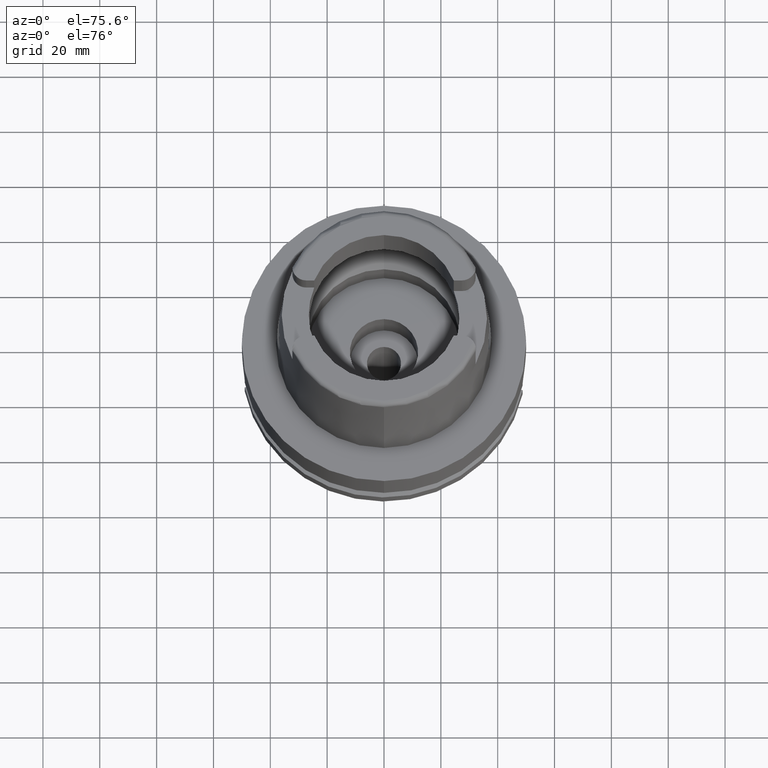
[diagram: clean part render]
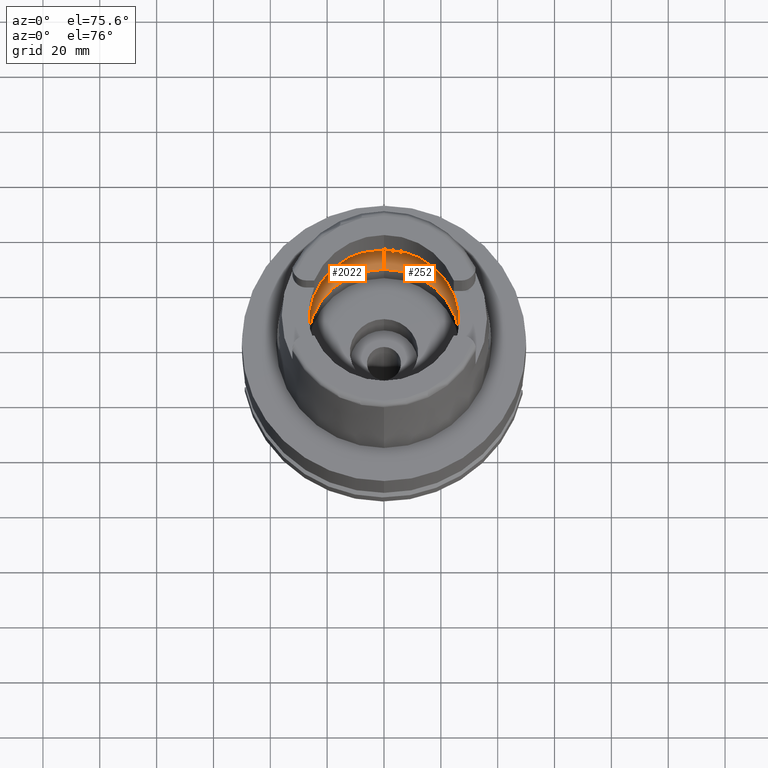
[diagram: same view with one multi-face feature highlighted, each face labeled with its STEP entity id]
A machine part, auxiliary view. The highlighted faces form ONE feature: a constant-radius fillet chain: 2 tangent blend faces with common blend radius 12 mm. The faces share edges in the B-rep.
Their STEP definitions:
[1] entity #252 (Torus):
#157 = ORIENTED_EDGE ( 'NONE', *, *, #2971, .F. ) ;
#214 = VERTEX_POINT ( 'NONE', #5215 ) ;
#252 = ADVANCED_FACE ( 'NONE', ( #5005 ), #380, .F. ) ;
#380 = TOROIDAL_SURFACE ( 'NONE', #1836, 19.50000000000000000, 12.00000000000000000 ) ;
#526 = VERTEX_POINT ( 'NONE', #2624 ) ;
#592 = B_SPLINE_CURVE_WITH_KNOTS ( 'NONE', 3,
 ( #5105, #4402, #3446, #4346, #2585, #1752 ),
 .UNSPECIFIED., .F., .F.,
 ( 4, 1, 1, 4 ),
 ( 0.0000000000000000000, 0.3333333333333000081, 0.6666666666667000474, 1.000000000000000000 ),
 .UNSPECIFIED. ) ;
#808 = VERTEX_POINT ( 'NONE', #4182 ) ;
#1417 = CARTESIAN_POINT ( 'NONE',  ( 0.0000000000000000000, 19.50000000000000000, 9.496624327025999790 ) ) ;
#1445 = ORIENTED_EDGE ( 'NONE', *, *, #2816, .F. ) ;
#1496 = CARTESIAN_POINT ( 'NONE',  ( 31.45843215351000310, 1.626125992769999806, 9.205189397203000112 ) ) ;
#1587 = CARTESIAN_POINT ( 'NONE',  ( 31.48971910754000447, 0.2740808193429000172, 9.000000000000000000 ) ) ;
#1752 = CARTESIAN_POINT ( 'NONE',  ( 31.40918884336000616, -2.390158196043999705, 9.496624327025999790 ) ) ;
#1775 = DIRECTION ( 'NONE',  ( 0.0000000000000000000, 0.0000000000000000000, -1.000000000000000000 ) ) ;
#1805 = DIRECTION ( 'NONE',  ( 0.9971171061384295209, -0.07587803796965221503, 0.0000000000000000000 ) ) ;
#1836 = AXIS2_PLACEMENT_3D ( 'NONE', #5062, #5571, #2999 ) ;
#1876 = DIRECTION ( 'NONE',  ( -1.000000000000000000, 0.0000000000000000000, 0.0000000000000000000 ) ) ;
#1896 = DIRECTION ( 'NONE',  ( 0.0000000000000000000, 0.6166666666667049990, -0.7872243785746061429 ) ) ;
#2004 = VERTEX_POINT ( 'NONE', #5383 ) ;
#2041 = CARTESIAN_POINT ( 'NONE',  ( 0.0000000000000000000, -26.89999999999999858, 0.04993178413028000195 ) ) ;
#2161 = CARTESIAN_POINT ( 'NONE',  ( 0.0000000000000000000, 31.50000000000000000, 9.496624327025999790 ) ) ;
#2236 = AXIS2_PLACEMENT_3D ( 'NONE', #2627, #1775, #1805 ) ;
#2362 = CARTESIAN_POINT ( 'NONE',  ( 31.40918884336000616, 2.390158196043999705, 9.496624327025999790 ) ) ;
#2391 = CARTESIAN_POINT ( 'NONE',  ( 31.48971910754000447, 0.0000000000000000000, 9.000000000000000000 ) ) ;
#2402 = AXIS2_PLACEMENT_3D ( 'NONE', #3625, #3194, #2757 ) ;
#2480 = ORIENTED_EDGE ( 'NONE', *, *, #2752, .T. ) ;
#2496 = AXIS2_PLACEMENT_3D ( 'NONE', #1417, #5318, #1896 ) ;
#2536 = EDGE_CURVE ( 'NONE', #2004, #5095, #4681, .T. ) ;
#2560 = VERTEX_POINT ( 'NONE', #2161 ) ;
#2585 = CARTESIAN_POINT ( 'NONE',  ( 31.42817542026000410, -2.140654635826999996, 9.388263020288000860 ) ) ;
#2624 = CARTESIAN_POINT ( 'NONE',  ( 0.0000000000000000000, 26.89999999999999858, 0.04993178413029000090 ) ) ;
#2627 = CARTESIAN_POINT ( 'NONE',  ( 0.0000000000000000000, 0.0000000000000000000, 9.496624327025999790 ) ) ;
#2752 = EDGE_CURVE ( 'NONE', #3300, #5095, #2850, .T. ) ;
#2757 = DIRECTION ( 'NONE',  ( 0.0000000000000000000, 1.000000000000000000, 0.0000000000000000000 ) ) ;
#2816 = EDGE_CURVE ( 'NONE', #526, #2560, #3510, .T. ) ;
#2850 = CIRCLE ( 'NONE', #4038, 11.99999999999999822 ) ;
#2891 = EDGE_CURVE ( 'NONE', #2560, #214, #3047, .T. ) ;
#2971 = EDGE_CURVE ( 'NONE', #214, #808, #4480, .T. ) ;
#2998 = EDGE_CURVE ( 'NONE', #3300, #526, #3514, .T. ) ;
#2999 = DIRECTION ( 'NONE',  ( 0.0000000000000000000, 1.000000000000000000, 0.0000000000000000000 ) ) ;
#3047 = CIRCLE ( 'NONE', #2402, 31.50000000000000000 ) ;
#3168 = DIRECTION ( 'NONE',  ( 0.0000000000000000000, -0.6166666666667049990, -0.7872243785746061429 ) ) ;
#3194 = DIRECTION ( 'NONE',  ( 0.0000000000000000000, 0.0000000000000000000, -1.000000000000000000 ) ) ;
#3220 = CARTESIAN_POINT ( 'NONE',  ( 0.0000000000000000000, 0.0000000000000000000, 0.04993178413028000195 ) ) ;
#3241 = ORIENTED_EDGE ( 'NONE', *, *, #2891, .F. ) ;
#3300 = VERTEX_POINT ( 'NONE', #2041 ) ;
#3446 = CARTESIAN_POINT ( 'NONE',  ( 31.48416657243999950, -0.8216274657312000462, 9.037606582851999804 ) ) ;
#3510 = CIRCLE ( 'NONE', #2496, 11.99999999999999822 ) ;
#3514 = CIRCLE ( 'NONE', #5475, 26.89999999999999858 ) ;
#3625 = CARTESIAN_POINT ( 'NONE',  ( 0.0000000000000000000, 0.0000000000000000000, 9.496624327025999790 ) ) ;
#4038 = AXIS2_PLACEMENT_3D ( 'NONE', #5258, #1876, #3168 ) ;
#4182 = CARTESIAN_POINT ( 'NONE',  ( 31.48971910754000447, 0.0000000000000000000, 9.000000000000000000 ) ) ;
#4247 = EDGE_CURVE ( 'NONE', #808, #2004, #592, .T. ) ;
#4346 = CARTESIAN_POINT ( 'NONE',  ( 31.45843229728999901, -1.626122314408000147, 9.205188491873000700 ) ) ;
#4394 = EDGE_LOOP ( 'NONE', ( #157, #3241, #1445, #4846, #2480, #4477, #4758 ) ) ;
#4402 = CARTESIAN_POINT ( 'NONE',  ( 31.48971910754000447, -0.2740816369240999806, 9.000000000000000000 ) ) ;
#4477 = ORIENTED_EDGE ( 'NONE', *, *, #2536, .F. ) ;
#4480 = B_SPLINE_CURVE_WITH_KNOTS ( 'NONE', 3,
 ( #2362, #5476, #1496, #5445, #1587, #2391 ),
 .UNSPECIFIED., .F., .F.,
 ( 4, 1, 1, 4 ),
 ( 0.0000000000000000000, 0.3333333333333000081, 0.6666666666667000474, 1.000000000000000000 ),
 .UNSPECIFIED. ) ;
#4552 = DIRECTION ( 'NONE',  ( 0.0000000000000000000, -1.000000000000000000, 0.0000000000000000000 ) ) ;
#4644 = DIRECTION ( 'NONE',  ( 0.0000000000000000000, 0.0000000000000000000, 1.000000000000000000 ) ) ;
#4681 = CIRCLE ( 'NONE', #2236, 31.49999999999998934 ) ;
#4758 = ORIENTED_EDGE ( 'NONE', *, *, #4247, .F. ) ;
#4846 = ORIENTED_EDGE ( 'NONE', *, *, #2998, .F. ) ;
#5005 = FACE_OUTER_BOUND ( 'NONE', #4394, .T. ) ;
#5062 = CARTESIAN_POINT ( 'NONE',  ( 0.0000000000000000000, 0.0000000000000000000, 9.496624327025999790 ) ) ;
#5088 = CARTESIAN_POINT ( 'NONE',  ( 0.0000000000000000000, -31.50000000000000000, 9.496624327025999790 ) ) ;
#5095 = VERTEX_POINT ( 'NONE', #5088 ) ;
#5105 = CARTESIAN_POINT ( 'NONE',  ( 31.48971910754000447, 0.0000000000000000000, 9.000000000000000000 ) ) ;
#5215 = CARTESIAN_POINT ( 'NONE',  ( 31.40918884336000616, 2.390158196043999705, 9.496624327025999790 ) ) ;
#5258 = CARTESIAN_POINT ( 'NONE',  ( 0.0000000000000000000, -19.50000000000000000, 9.496624327025999790 ) ) ;
#5318 = DIRECTION ( 'NONE',  ( 1.000000000000000000, 0.0000000000000000000, 0.0000000000000000000 ) ) ;
#5383 = CARTESIAN_POINT ( 'NONE',  ( 31.40918884336000616, -2.390158196043999705, 9.496624327025999790 ) ) ;
#5445 = CARTESIAN_POINT ( 'NONE',  ( 31.48416663622000300, 0.8216256622719000369, 9.037606172252001357 ) ) ;
#5475 = AXIS2_PLACEMENT_3D ( 'NONE', #3220, #4644, #4552 ) ;
#5476 = CARTESIAN_POINT ( 'NONE',  ( 31.42817530553000083, 2.140656143518000487, 9.388263675090000149 ) ) ;
#5571 = DIRECTION ( 'NONE',  ( 0.0000000000000000000, 0.0000000000000000000, 1.000000000000000000 ) ) ;
[2] entity #2022 (Torus):
#2 = CARTESIAN_POINT ( 'NONE',  ( -31.40918884336000616, 2.390158196043999705, 9.496624327025999790 ) ) ;
#17 = CARTESIAN_POINT ( 'NONE',  ( -31.48971910754000447, 0.0000000000000000000, 9.000000000000000000 ) ) ;
#161 = CARTESIAN_POINT ( 'NONE',  ( -31.48971910754000447, -0.2740811097498000448, 9.000000000000000000 ) ) ;
#217 = CARTESIAN_POINT ( 'NONE',  ( 0.0000000000000000000, 0.0000000000000000000, 9.496624327025999790 ) ) ;
#440 = CARTESIAN_POINT ( 'NONE',  ( -31.48971910754000447, 0.2740813517951999900, 9.000000000000000000 ) ) ;
#516 = CIRCLE ( 'NONE', #4777, 31.50000000000000000 ) ;
#526 = VERTEX_POINT ( 'NONE', #2624 ) ;
#651 = DIRECTION ( 'NONE',  ( 0.0000000000000000000, 0.0000000000000000000, 1.000000000000000000 ) ) ;
#811 = ORIENTED_EDGE ( 'NONE', *, *, #3596, .F. ) ;
#812 = CARTESIAN_POINT ( 'NONE',  ( -31.40918884336000616, -2.390158196043999705, 9.496624327025999790 ) ) ;
#831 = CARTESIAN_POINT ( 'NONE',  ( -31.48971910754000447, 0.0000000000000000000, 9.000000000000000000 ) ) ;
#840 = VERTEX_POINT ( 'NONE', #812 ) ;
#1153 = DIRECTION ( 'NONE',  ( 0.0000000000000000000, -1.000000000000000000, 0.0000000000000000000 ) ) ;
#1417 = CARTESIAN_POINT ( 'NONE',  ( 0.0000000000000000000, 19.50000000000000000, 9.496624327025999790 ) ) ;
#1547 = CARTESIAN_POINT ( 'NONE',  ( -31.48416659375000037, -0.8216262390445000507, 9.037606438216000626 ) ) ;
#1629 = DIRECTION ( 'NONE',  ( 0.0000000000000000000, 1.000000000000000000, 0.0000000000000000000 ) ) ;
#1657 = CARTESIAN_POINT ( 'NONE',  ( 0.0000000000000000000, 0.0000000000000000000, 0.04993178413028000195 ) ) ;
#1865 = ORIENTED_EDGE ( 'NONE', *, *, #3355, .F. ) ;
#1875 = CIRCLE ( 'NONE', #2756, 31.50000000000001421 ) ;
#1876 = DIRECTION ( 'NONE',  ( -1.000000000000000000, 0.0000000000000000000, 0.0000000000000000000 ) ) ;
#1896 = DIRECTION ( 'NONE',  ( 0.0000000000000000000, 0.6166666666667049990, -0.7872243785746061429 ) ) ;
#2022 = ADVANCED_FACE ( 'NONE', ( #4576 ), #4215, .F. ) ;
#2041 = CARTESIAN_POINT ( 'NONE',  ( 0.0000000000000000000, -26.89999999999999858, 0.04993178413028000195 ) ) ;
#2161 = CARTESIAN_POINT ( 'NONE',  ( 0.0000000000000000000, 31.50000000000000000, 9.496624327025999790 ) ) ;
#2343 = VERTEX_POINT ( 'NONE', #17 ) ;
#2496 = AXIS2_PLACEMENT_3D ( 'NONE', #1417, #5318, #1896 ) ;
#2515 = DIRECTION ( 'NONE',  ( -0.9971171061384286327, 0.07587803796966216541, 0.0000000000000000000 ) ) ;
#2529 = EDGE_CURVE ( 'NONE', #5243, #2560, #1875, .T. ) ;
#2554 = CARTESIAN_POINT ( 'NONE',  ( -31.48416661469000033, 0.8216269012393999649, 9.037606318336999678 ) ) ;
#2560 = VERTEX_POINT ( 'NONE', #2161 ) ;
#2581 = ORIENTED_EDGE ( 'NONE', *, *, #2752, .F. ) ;
#2624 = CARTESIAN_POINT ( 'NONE',  ( 0.0000000000000000000, 26.89999999999999858, 0.04993178413029000090 ) ) ;
#2752 = EDGE_CURVE ( 'NONE', #3300, #5095, #2850, .T. ) ;
#2756 = AXIS2_PLACEMENT_3D ( 'NONE', #5124, #3830, #2515 ) ;
#2795 = ORIENTED_EDGE ( 'NONE', *, *, #3564, .F. ) ;
#2816 = EDGE_CURVE ( 'NONE', #526, #2560, #3510, .T. ) ;
#2850 = CIRCLE ( 'NONE', #4038, 11.99999999999999822 ) ;
#2942 = ORIENTED_EDGE ( 'NONE', *, *, #4306, .F. ) ;
#3046 = CARTESIAN_POINT ( 'NONE',  ( -31.40918884336000616, 2.390158196043999705, 9.496624327025999790 ) ) ;
#3168 = DIRECTION ( 'NONE',  ( 0.0000000000000000000, -0.6166666666667049990, -0.7872243785746061429 ) ) ;
#3187 = CARTESIAN_POINT ( 'NONE',  ( -31.45843235400999660, -1.626121130666000170, 9.205188134635001518 ) ) ;
#3240 = CARTESIAN_POINT ( 'NONE',  ( -31.42817545703999826, -2.140654152532999621, 9.388262810390001434 ) ) ;
#3246 = ORIENTED_EDGE ( 'NONE', *, *, #2529, .F. ) ;
#3300 = VERTEX_POINT ( 'NONE', #2041 ) ;
#3355 = EDGE_CURVE ( 'NONE', #5095, #840, #516, .T. ) ;
#3510 = CIRCLE ( 'NONE', #2496, 11.99999999999999822 ) ;
#3564 = EDGE_CURVE ( 'NONE', #526, #3300, #4406, .T. ) ;
#3596 = EDGE_CURVE ( 'NONE', #840, #2343, #3984, .T. ) ;
#3622 = CARTESIAN_POINT ( 'NONE',  ( -31.48971910754000447, 0.0000000000000000000, 9.000000000000000000 ) ) ;
#3830 = DIRECTION ( 'NONE',  ( 0.0000000000000000000, 0.0000000000000000000, -1.000000000000000000 ) ) ;
#3984 = B_SPLINE_CURVE_WITH_KNOTS ( 'NONE', 3,
 ( #4043, #3240, #3187, #1547, #161, #3622 ),
 .UNSPECIFIED., .F., .F.,
 ( 4, 1, 1, 4 ),
 ( 0.0000000000000000000, 0.3333333333333000081, 0.6666666666667000474, 1.000000000000000000 ),
 .UNSPECIFIED. ) ;
#4030 = EDGE_LOOP ( 'NONE', ( #1865, #2581, #2795, #5163, #3246, #2942, #811 ) ) ;
#4038 = AXIS2_PLACEMENT_3D ( 'NONE', #5258, #1876, #3168 ) ;
#4043 = CARTESIAN_POINT ( 'NONE',  ( -31.40918884336000616, -2.390158196043999705, 9.496624327025999790 ) ) ;
#4061 = DIRECTION ( 'NONE',  ( 0.0000000000000000000, 0.0000000000000000000, 1.000000000000000000 ) ) ;
#4122 = DIRECTION ( 'NONE',  ( 0.0000000000000000000, 0.0000000000000000000, -1.000000000000000000 ) ) ;
#4215 = TOROIDAL_SURFACE ( 'NONE', #4767, 19.50000000000000000, 12.00000000000000000 ) ;
#4306 = EDGE_CURVE ( 'NONE', #2343, #5243, #4651, .T. ) ;
#4406 = CIRCLE ( 'NONE', #4589, 26.89999999999999858 ) ;
#4485 = CARTESIAN_POINT ( 'NONE',  ( 0.0000000000000000000, 0.0000000000000000000, 9.496624327025999790 ) ) ;
#4512 = DIRECTION ( 'NONE',  ( 0.0000000000000000000, 1.000000000000000000, 0.0000000000000000000 ) ) ;
#4576 = FACE_OUTER_BOUND ( 'NONE', #4030, .T. ) ;
#4589 = AXIS2_PLACEMENT_3D ( 'NONE', #1657, #651, #1629 ) ;
#4651 = B_SPLINE_CURVE_WITH_KNOTS ( 'NONE', 3,
 ( #831, #440, #2554, #5588, #5188, #3046 ),
 .UNSPECIFIED., .F., .F.,
 ( 4, 1, 1, 4 ),
 ( 0.0000000000000000000, 0.3333333333333000081, 0.6666666666667000474, 1.000000000000000000 ),
 .UNSPECIFIED. ) ;
#4767 = AXIS2_PLACEMENT_3D ( 'NONE', #4485, #4061, #4512 ) ;
#4777 = AXIS2_PLACEMENT_3D ( 'NONE', #217, #4122, #1153 ) ;
#5088 = CARTESIAN_POINT ( 'NONE',  ( 0.0000000000000000000, -31.50000000000000000, 9.496624327025999790 ) ) ;
#5095 = VERTEX_POINT ( 'NONE', #5088 ) ;
#5124 = CARTESIAN_POINT ( 'NONE',  ( 0.0000000000000000000, 0.0000000000000000000, 9.496624327025999790 ) ) ;
#5163 = ORIENTED_EDGE ( 'NONE', *, *, #2816, .T. ) ;
#5188 = CARTESIAN_POINT ( 'NONE',  ( -31.42817526838999953, 2.140656631636999929, 9.388263887083001080 ) ) ;
#5243 = VERTEX_POINT ( 'NONE', #2 ) ;
#5258 = CARTESIAN_POINT ( 'NONE',  ( 0.0000000000000000000, -19.50000000000000000, 9.496624327025999790 ) ) ;
#5318 = DIRECTION ( 'NONE',  ( 1.000000000000000000, 0.0000000000000000000, 0.0000000000000000000 ) ) ;
#5588 = CARTESIAN_POINT ( 'NONE',  ( -31.45843209623000547, 1.626127188330999784, 9.205189758010000389 ) ) ;